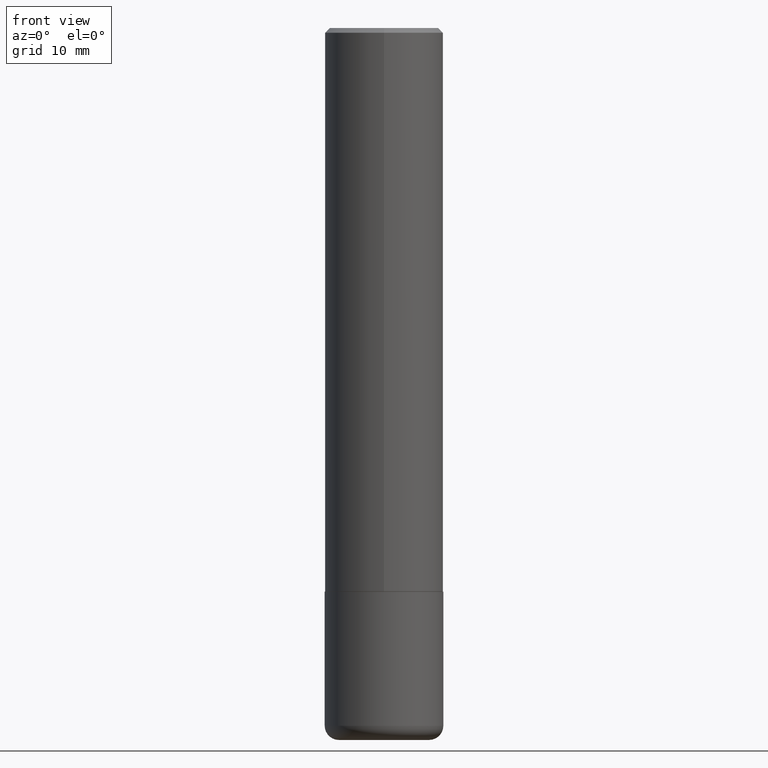
[diagram: clean part render]
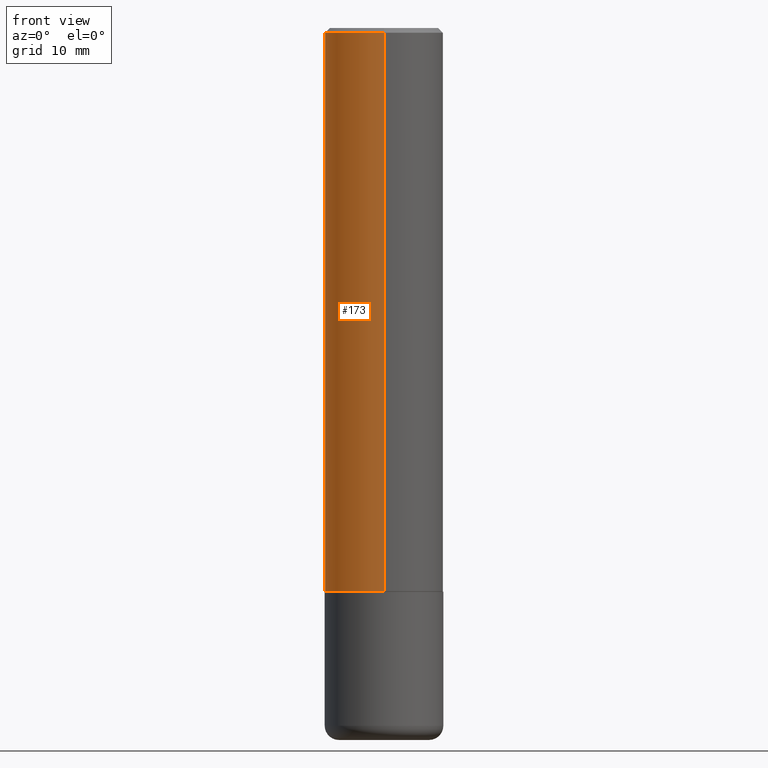
[diagram: same view with one face highlighted and labeled with its STEP entity id]
A machine part, front view. The second image highlights one B-rep face of the part: STEP entity #173.
In plain terms, the highlighted cylindrical surface (partial cylindrical patch) has radius 6.35 mm, axis along (-0, 0, 1).
Its self-contained STEP definition (entity closure, byte-faithful):
#5 = AXIS2_PLACEMENT_3D ( 'NONE', #324, #34, #155 ) ;
#8 = VERTEX_POINT ( 'NONE', #317 ) ;
#10 = ORIENTED_EDGE ( 'NONE', *, *, #407, .T. ) ;
#13 = ORIENTED_EDGE ( 'NONE', *, *, #338, .F. ) ;
#15 = CIRCLE ( 'NONE', #5, 0.2500000000000000000 ) ;
#16 = FACE_OUTER_BOUND ( 'NONE', #389, .T. ) ;
#31 = DIRECTION ( 'NONE',  ( -2.445729767687599458E-29, 3.491107627118612255E-15, 1.000000000000000000 ) ) ;
#34 = DIRECTION ( 'NONE',  ( -2.445729767687599458E-29, 3.491107627118612255E-15, 1.000000000000000000 ) ) ;
#53 = VERTEX_POINT ( 'NONE', #287 ) ;
#57 = AXIS2_PLACEMENT_3D ( 'NONE', #404, #306, #400 ) ;
#67 = CYLINDRICAL_SURFACE ( 'NONE', #57, 0.2500000000000001110 ) ;
#101 = AXIS2_PLACEMENT_3D ( 'NONE', #186, #31, #260 ) ;
#112 = CARTESIAN_POINT ( 'NONE',  ( 1.776356839400251254E-15, 0.2500000000000001110, -8.727769067796535567E-16 ) ) ;
#117 = LINE ( 'NONE', #112, #323 ) ;
#119 = EDGE_CURVE ( 'NONE', #120, #8, #15, .T. ) ;
#120 = VERTEX_POINT ( 'NONE', #374 ) ;
#147 = CARTESIAN_POINT ( 'NONE',  ( -1.745740669421567467E-15, -0.2500000000000001110, 8.727769067796535567E-16 ) ) ;
#155 = DIRECTION ( 'NONE',  ( -6.982962677686265922E-15, -1.000000000000000000, 3.483106191921935554E-15 ) ) ;
#169 = CIRCLE ( 'NONE', #101, 0.2500000000000002776 ) ;
#173 = ADVANCED_FACE ( 'NONE', ( #16 ), #67, .T. ) ;
#175 = DIRECTION ( 'NONE',  ( -2.445729767687599458E-29, 3.491107627118612649E-15, 1.000000000000000000 ) ) ;
#186 = CARTESIAN_POINT ( 'NONE',  ( 5.806162468490361962E-29, -8.287889506779587323E-15, -2.374000000000000110 ) ) ;
#225 = VERTEX_POINT ( 'NONE', #329 ) ;
#260 = DIRECTION ( 'NONE',  ( -6.982962677686265922E-15, -1.000000000000000000, 3.278217592397112312E-15 ) ) ;
#272 = VECTOR ( 'NONE', #380, 39.37007874015748143 ) ;
#282 = LINE ( 'NONE', #147, #272 ) ;
#287 = CARTESIAN_POINT ( 'NONE',  ( -1.745740669421510471E-15, -0.2500000000000085487, -2.373999999999999222 ) ) ;
#306 = DIRECTION ( 'NONE',  ( -2.445729767687599458E-29, 3.491107627118612255E-15, 1.000000000000000000 ) ) ;
#317 = CARTESIAN_POINT ( 'NONE',  ( -1.715124499442882299E-15, -0.2500000000000000555, -0.01999999999999918510 ) ) ;
#320 = EDGE_CURVE ( 'NONE', #53, #8, #282, .T. ) ;
#323 = VECTOR ( 'NONE', #175, 39.37007874015748143 ) ;
#324 = CARTESIAN_POINT ( 'NONE',  ( 4.891459535375212615E-31, -6.982215254237243146E-17, -0.02000000000000005593 ) ) ;
#329 = CARTESIAN_POINT ( 'NONE',  ( 1.776356839400280836E-15, 0.2499999999999919786, -2.374000000000000998 ) ) ;
#331 = ORIENTED_EDGE ( 'NONE', *, *, #320, .T. ) ;
#338 = EDGE_CURVE ( 'NONE', #225, #120, #117, .T. ) ;
#364 = ORIENTED_EDGE ( 'NONE', *, *, #119, .F. ) ;
#374 = CARTESIAN_POINT ( 'NONE',  ( 1.745740669421566875E-15, 0.2499999999999999167, -0.02000000000000092676 ) ) ;
#380 = DIRECTION ( 'NONE',  ( -2.445729767687599458E-29, 3.491107627118612649E-15, 1.000000000000000000 ) ) ;
#389 = EDGE_LOOP ( 'NONE', ( #13, #10, #331, #364 ) ) ;
#400 = DIRECTION ( 'NONE',  ( -6.982962677686266711E-15, -1.000000000000000000, 3.491107627118612649E-15 ) ) ;
#404 = CARTESIAN_POINT ( 'NONE',  ( 0.000000000000000000, 0.000000000000000000, 0.000000000000000000 ) ) ;
#407 = EDGE_CURVE ( 'NONE', #225, #53, #169, .T. ) ;